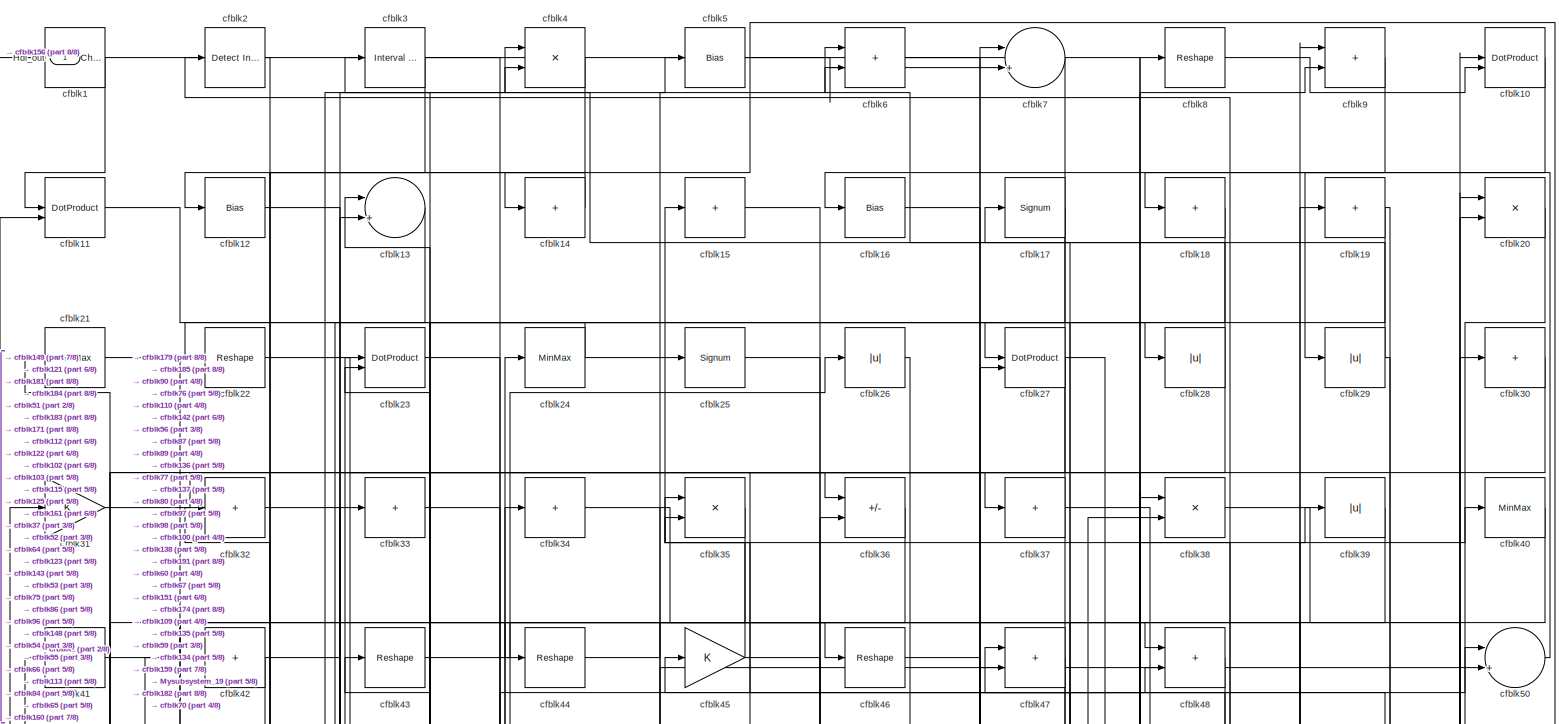
[diagram: root canvas - part 1/8, full width, top band]
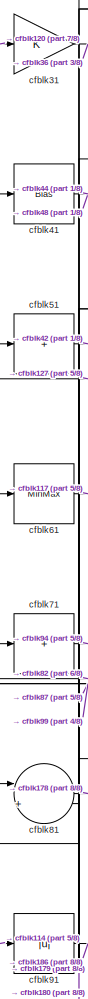
[diagram: root canvas - part 2/8, top left region]
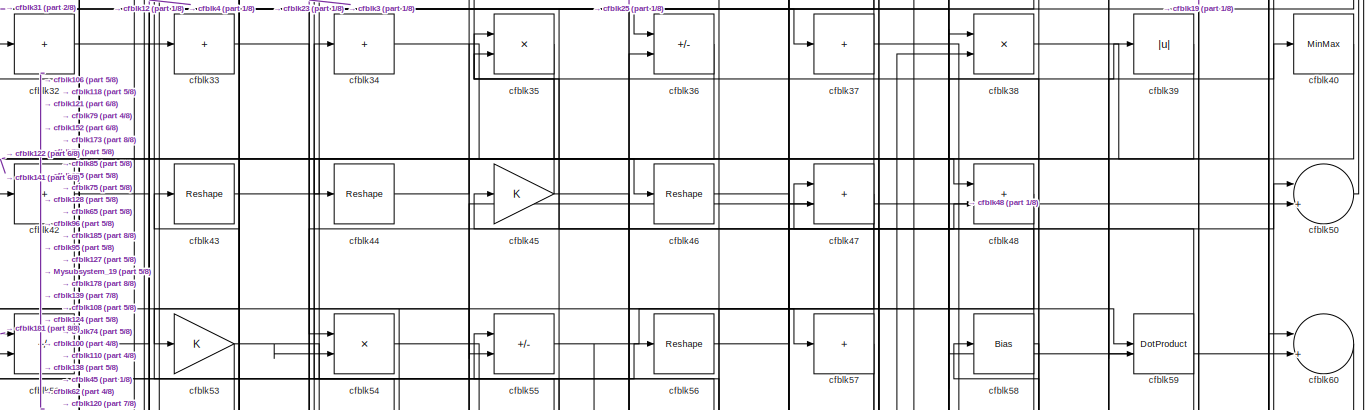
[diagram: root canvas - part 3/8, full width, top band]
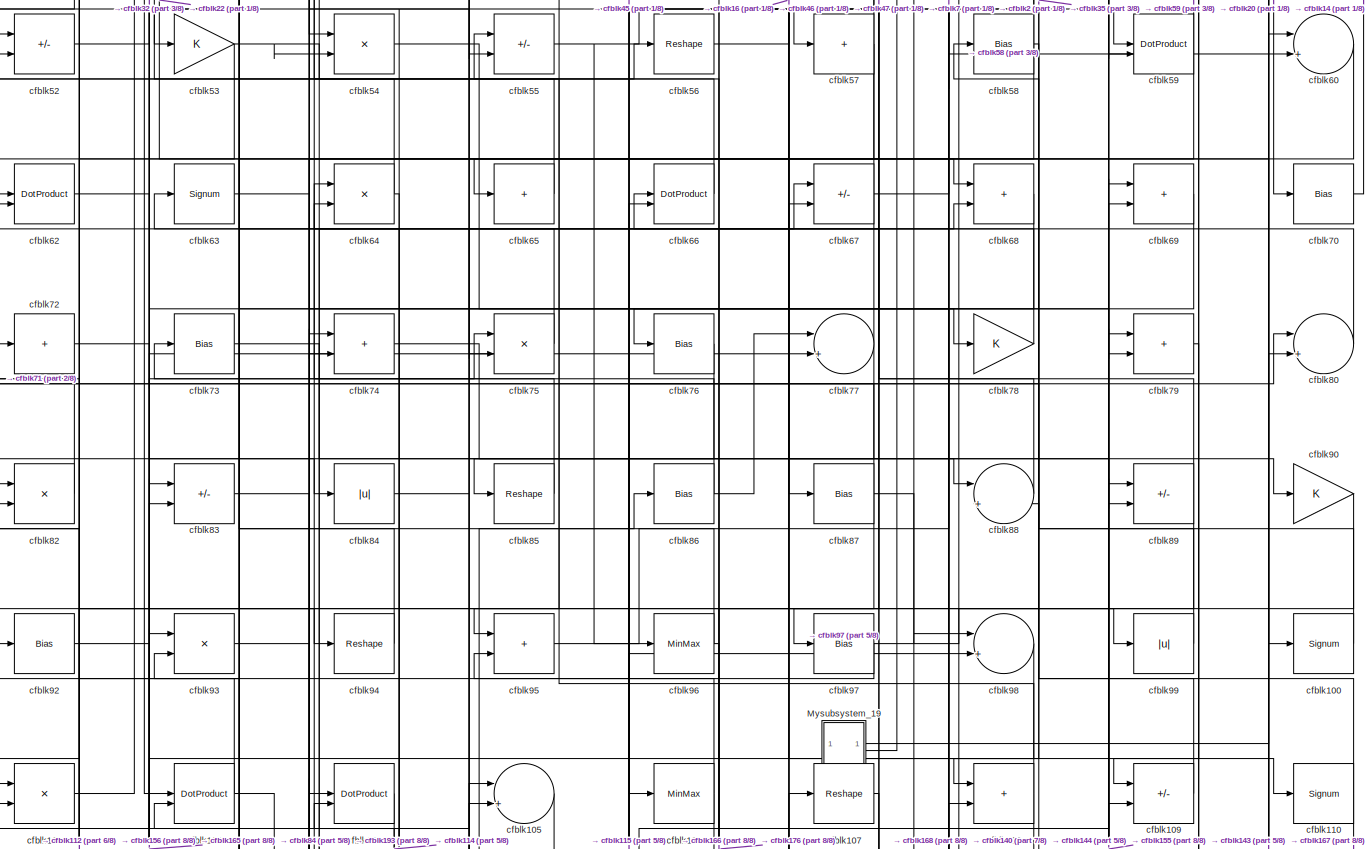
[diagram: root canvas - part 4/8, full width, middle band]
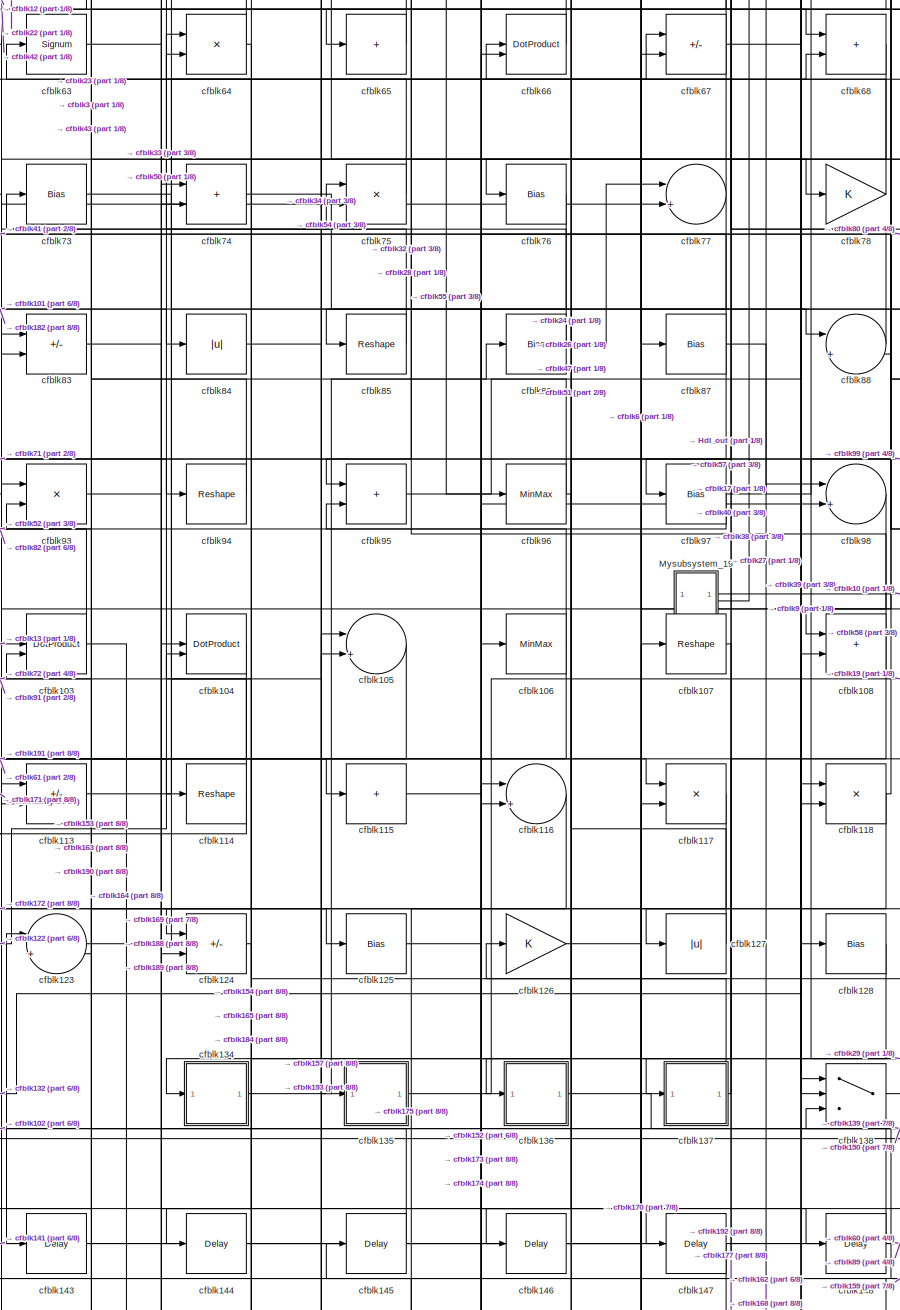
[diagram: root canvas - part 5/8, central region]
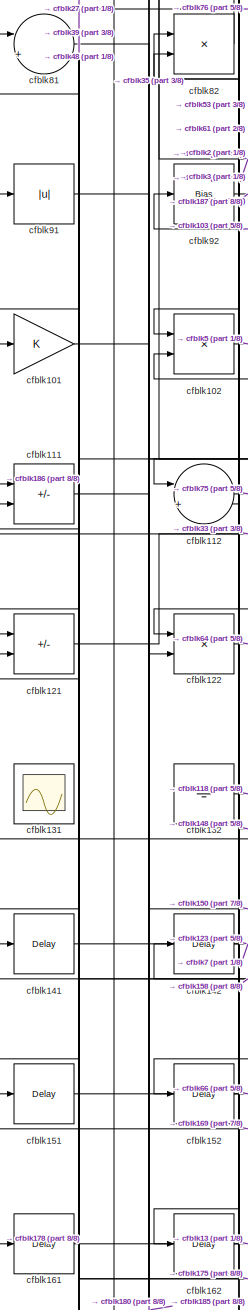
[diagram: root canvas - part 6/8, middle left region]
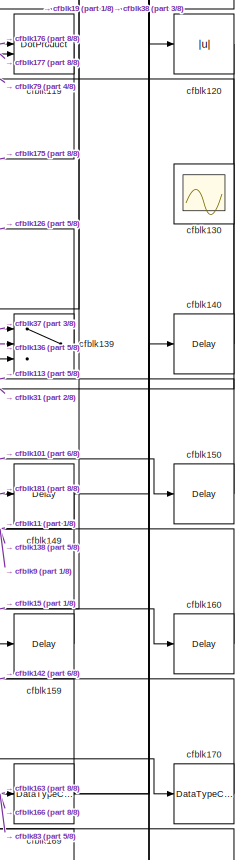
[diagram: root canvas - part 7/8, bottom right region]
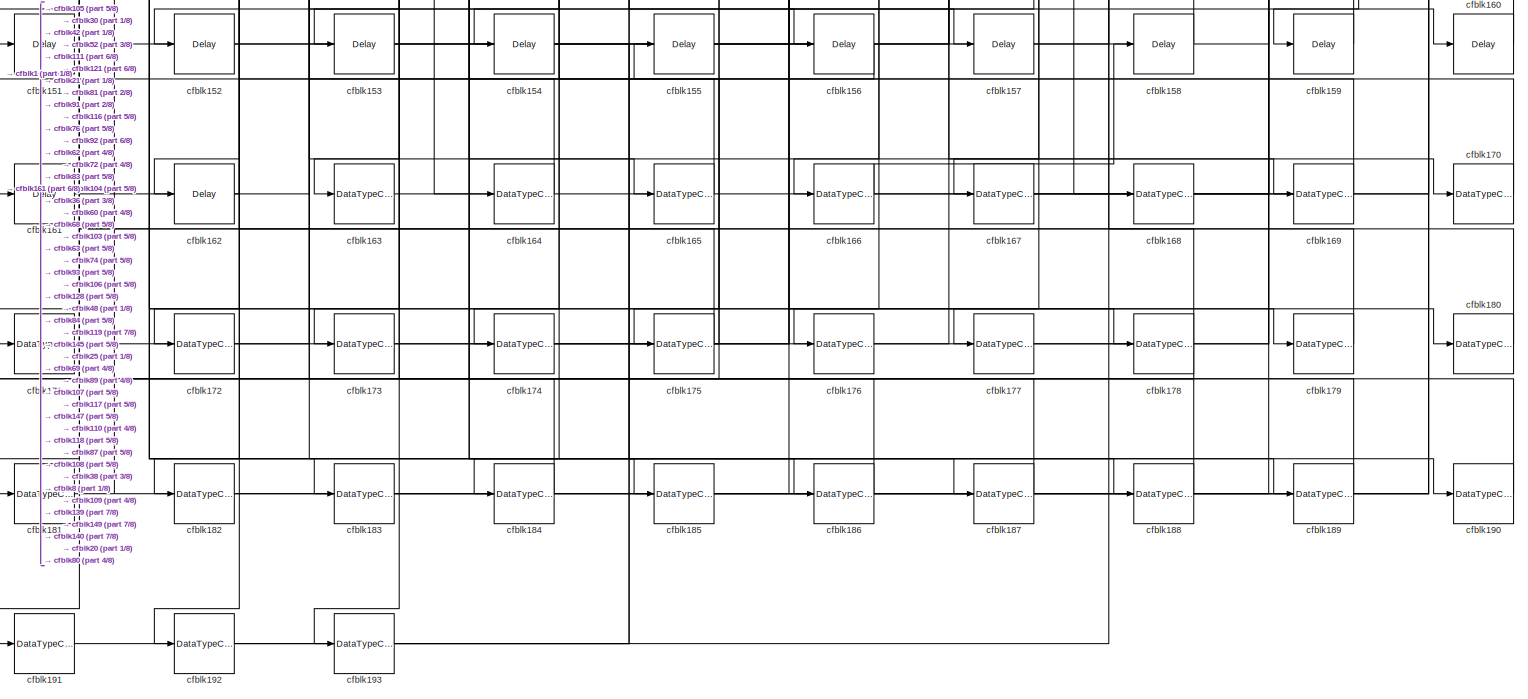
[diagram: root canvas - part 8/8, full width, bottom band]
MODEL slx_78183e9eb3cf
KIND model
CONFIG AbsTol = auto
CONFIG EnableMultiTasking = off
CONFIG FixedStep = auto
CONFIG MaxStep = auto
CONFIG MinStep = auto
CONFIG RelTol = 1e-3
CONFIG SampleTimeConstraint = Unconstrained
CONFIG SolverName = VariableStepAuto
CONFIG StartTime = 0.0
CONFIG StopTime = 10.0
BLOCK [Outport] Hdl_out
  OutDataTypeStr = uint8
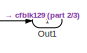
[diagram: Mysubsystem_19 - part 1/3, top right region]
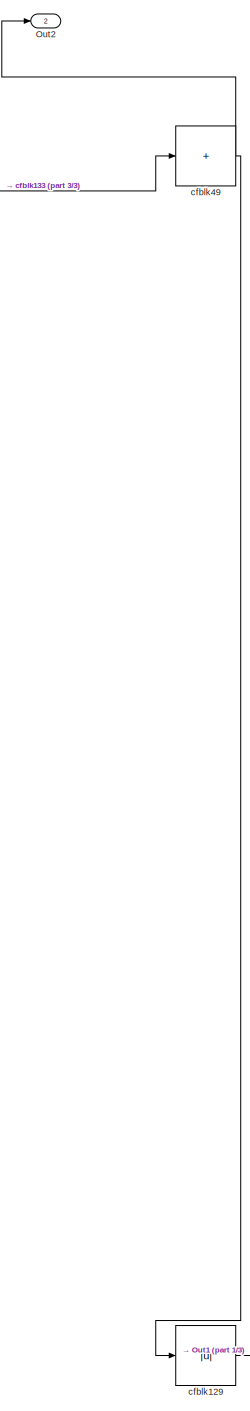
[diagram: Mysubsystem_19 - part 2/3, middle right region]
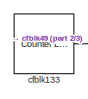
[diagram: Mysubsystem_19 - part 3/3, bottom left region]
BLOCK [SubSystem] Mysubsystem_19
  RTWFcnName = Mysubsystem_19
  RTWFcnNameOpts = User specified
  RTWFileNameOpts = Use function name
  RTWSystemCode = Reusable function
  TreatAsAtomicUnit = on
BLOCK [Outport] Mysubsystem_19/Out1
BLOCK [Outport] Mysubsystem_19/Out2
  Port = 2
BLOCK [Abs] Mysubsystem_19/cfblk129
  SaturateOnIntegerOverflow = off
BLOCK [Reference] Mysubsystem_19/cfblk133  REF=hdlsllib/Sources/Counter
Limited
  SourceBlock = hdlsllib/Sources/Counter\nLimited
  SourceType = Counter Limited
BLOCK [Sum] Mysubsystem_19/cfblk49
  IconShape = rectangular
  Inputs = +
BLOCK [Reference] cfblk1  REF=simulink/Logic and Bit
Operations/Detect
Change
  LibrarySourceBlock = hdlsllib/Logic and Bit\nOperations/Detect\nChange
  SourceBlock = simulink/Logic and Bit\nOperations/Detect\nChange
  SourceType = Detect Change
BLOCK [DotProduct] cfblk10
  OutDataTypeStr = uint8
BLOCK [Signum] cfblk100
BLOCK [Gain] cfblk101
  OutDataTypeStr = uint8
BLOCK [Product] cfblk102
  Inputs = */
  OutDataTypeStr = uint8
  RndMeth = Zero
  SaturateOnIntegerOverflow = on
BLOCK [DotProduct] cfblk103
  OutDataTypeStr = uint8
BLOCK [DotProduct] cfblk104
  OutDataTypeStr = uint8
BLOCK [Sum] cfblk105
  Inputs = |++
  OutDataTypeStr = uint8
BLOCK [MinMax] cfblk106
  OutDataTypeStr = uint8
BLOCK [Reshape] cfblk107
BLOCK [Sum] cfblk108
  IconShape = rectangular
  OutDataTypeStr = uint8
BLOCK [Sum] cfblk109
  IconShape = rectangular
  Inputs = +-
  OutDataTypeStr = uint8
BLOCK [DotProduct] cfblk11
  OutDataTypeStr = uint8
BLOCK [Signum] cfblk110
BLOCK [Sum] cfblk111
  IconShape = rectangular
  Inputs = +-
  OutDataTypeStr = uint8
BLOCK [Sum] cfblk112
  Inputs = |++
  OutDataTypeStr = uint8
BLOCK [Sum] cfblk113
  IconShape = rectangular
  Inputs = +-
  OutDataTypeStr = uint8
BLOCK [Reshape] cfblk114
BLOCK [Sum] cfblk115
  IconShape = rectangular
  Inputs = +
  OutDataTypeStr = uint8
BLOCK [Sum] cfblk116
  Inputs = |++
  OutDataTypeStr = uint8
BLOCK [Product] cfblk117
  Inputs = */
  OutDataTypeStr = uint8
  RndMeth = Zero
  SaturateOnIntegerOverflow = on
BLOCK [Product] cfblk118
  Inputs = */
  OutDataTypeStr = uint8
  RndMeth = Zero
  SaturateOnIntegerOverflow = on
BLOCK [DotProduct] cfblk119
  OutDataTypeStr = uint8
BLOCK [Bias] cfblk12
  Bias = 0.0
  SaturateOnIntegerOverflow = off
BLOCK [Abs] cfblk120
  OutDataTypeStr = uint8
  SaturateOnIntegerOverflow = off
BLOCK [Sum] cfblk121
  IconShape = rectangular
  Inputs = +-
  OutDataTypeStr = uint8
BLOCK [Product] cfblk122
  Inputs = */
  OutDataTypeStr = uint8
  RndMeth = Zero
  SaturateOnIntegerOverflow = on
BLOCK [Sum] cfblk123
  Inputs = |++
  OutDataTypeStr = uint8
BLOCK [Sum] cfblk124
  IconShape = rectangular
  Inputs = +-
  OutDataTypeStr = uint8
BLOCK [Bias] cfblk125
  Bias = 0.0
  SaturateOnIntegerOverflow = off
BLOCK [Gain] cfblk126
  OutDataTypeStr = uint8
BLOCK [Abs] cfblk127
  OutDataTypeStr = uint8
  SaturateOnIntegerOverflow = off
BLOCK [Bias] cfblk128
  Bias = 0.0
  SaturateOnIntegerOverflow = off
BLOCK [Sum] cfblk13
  Inputs = |++
  OutDataTypeStr = uint8
BLOCK [Scope] cfblk130
  Floating = on
  NumInputPorts = 1
  ScopeSpecificationString = Simulink.scopes.TimeScopeBlockCfg('CurrentConfiguration', extmgr.ConfigurationSet(extmgr.Configuration('Core','General UI',true,'FigureColor',[0.156862745098039 0.156862745098039 0.156862745098039]),extmgr.Configuration('Core','Source UI',true),extmgr.Configuration('Sources','WiredSimulink',true,'DataLoggingVariableName','ScopeData1','DataLoggingSaveFormat','StructureWithTime','DataLoggingLimitDat...<+2713ch>
BLOCK [Scope] cfblk131
  Floating = on
  NumInputPorts = 1
  ScopeSpecificationString = Simulink.scopes.TimeScopeBlockCfg('CurrentConfiguration', extmgr.ConfigurationSet(extmgr.Configuration('Core','General UI',true,'FigureColor',[0.156862745098039 0.156862745098039 0.156862745098039]),extmgr.Configuration('Core','Source UI',true),extmgr.Configuration('Sources','WiredSimulink',true,'DataLoggingVariableName','ScopeData1','DataLoggingSaveFormat','StructureWithTime','DataLoggingLimitDat...<+2713ch>
BLOCK [Ground] cfblk132
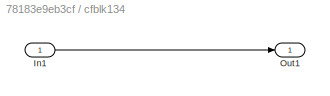
BLOCK [SubSystem] cfblk134
  LibrarySourceBlock = hdlsllib/Ports &\nSubsystems/Subsystem
BLOCK [Inport] cfblk134/In1
BLOCK [Outport] cfblk134/Out1
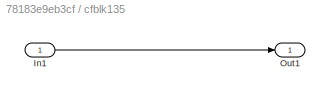
BLOCK [SubSystem] cfblk135
  LibrarySourceBlock = hdlsllib/Ports &\nSubsystems/Subsystem
BLOCK [Inport] cfblk135/In1
BLOCK [Outport] cfblk135/Out1
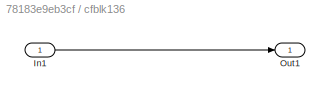
BLOCK [SubSystem] cfblk136
  LibrarySourceBlock = hdlsllib/Ports &\nSubsystems/Subsystem
BLOCK [Inport] cfblk136/In1
BLOCK [Outport] cfblk136/Out1
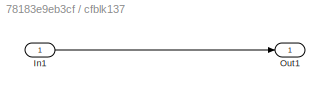
BLOCK [SubSystem] cfblk137
  LibrarySourceBlock = hdlsllib/Ports &\nSubsystems/Subsystem
BLOCK [Inport] cfblk137/In1
BLOCK [Outport] cfblk137/Out1
BLOCK [Switch] cfblk138
  InputSameDT = off
  OutDataTypeStr = uint8
  SaturateOnIntegerOverflow = off
BLOCK [Switch] cfblk139
  InputSameDT = off
  OutDataTypeStr = uint8
  SaturateOnIntegerOverflow = off
BLOCK [Sum] cfblk14
  IconShape = rectangular
  Inputs = +
  OutDataTypeStr = uint8
BLOCK [Delay] cfblk140
  InputPortMap = u0
  SampleTime = 1
BLOCK [Delay] cfblk141
  InputPortMap = u0
  SampleTime = 1
BLOCK [Delay] cfblk142
  InputPortMap = u0
  SampleTime = 1
BLOCK [Delay] cfblk143
  InputPortMap = u0
  SampleTime = 1
BLOCK [Delay] cfblk144
  InputPortMap = u0
  SampleTime = 1
BLOCK [Delay] cfblk145
  InputPortMap = u0
  SampleTime = 1
BLOCK [Delay] cfblk146
  InputPortMap = u0
  SampleTime = 1
BLOCK [Delay] cfblk147
  InputPortMap = u0
  SampleTime = 1
BLOCK [Delay] cfblk148
  InputPortMap = u0
  SampleTime = 1
BLOCK [Delay] cfblk149
  InputPortMap = u0
  SampleTime = 1
BLOCK [Sum] cfblk15
  IconShape = rectangular
  Inputs = +
  OutDataTypeStr = uint8
BLOCK [Delay] cfblk150
  InputPortMap = u0
  SampleTime = 1
BLOCK [Delay] cfblk151
  InputPortMap = u0
  SampleTime = 1
BLOCK [Delay] cfblk152
  InputPortMap = u0
  SampleTime = 1
BLOCK [Delay] cfblk153
  InputPortMap = u0
  SampleTime = 1
BLOCK [Delay] cfblk154
  InputPortMap = u0
  SampleTime = 1
BLOCK [Delay] cfblk155
  InputPortMap = u0
  SampleTime = 1
BLOCK [Delay] cfblk156
  InputPortMap = u0
  SampleTime = 1
BLOCK [Delay] cfblk157
  InputPortMap = u0
  SampleTime = 1
BLOCK [Delay] cfblk158
  InputPortMap = u0
  SampleTime = 1
BLOCK [Delay] cfblk159
  InputPortMap = u0
  SampleTime = 1
BLOCK [Bias] cfblk16
  Bias = 0.0
  SaturateOnIntegerOverflow = off
BLOCK [Delay] cfblk160
  InputPortMap = u0
  SampleTime = 1
BLOCK [Delay] cfblk161
  InputPortMap = u0
  SampleTime = 1
BLOCK [Delay] cfblk162
  InputPortMap = u0
  SampleTime = 1
BLOCK [DataTypeConversion] cfblk163
  OutDataTypeStr = uint8
  RndMeth = Floor
  SaturateOnIntegerOverflow = off
BLOCK [DataTypeConversion] cfblk164
  OutDataTypeStr = uint8
  RndMeth = Floor
  SaturateOnIntegerOverflow = off
BLOCK [DataTypeConversion] cfblk165
  OutDataTypeStr = uint8
  RndMeth = Floor
  SaturateOnIntegerOverflow = off
BLOCK [DataTypeConversion] cfblk166
  OutDataTypeStr = uint8
  RndMeth = Floor
  SaturateOnIntegerOverflow = off
BLOCK [DataTypeConversion] cfblk167
  OutDataTypeStr = uint8
  RndMeth = Floor
  SaturateOnIntegerOverflow = off
BLOCK [DataTypeConversion] cfblk168
  OutDataTypeStr = uint8
  RndMeth = Floor
  SaturateOnIntegerOverflow = off
BLOCK [DataTypeConversion] cfblk169
  OutDataTypeStr = uint8
  RndMeth = Floor
  SaturateOnIntegerOverflow = off
BLOCK [Signum] cfblk17
BLOCK [DataTypeConversion] cfblk170
  OutDataTypeStr = uint8
  RndMeth = Floor
  SaturateOnIntegerOverflow = off
BLOCK [DataTypeConversion] cfblk171
  OutDataTypeStr = uint8
  RndMeth = Floor
  SaturateOnIntegerOverflow = off
BLOCK [DataTypeConversion] cfblk172
  OutDataTypeStr = uint8
  RndMeth = Floor
  SaturateOnIntegerOverflow = off
BLOCK [DataTypeConversion] cfblk173
  OutDataTypeStr = uint8
  RndMeth = Floor
  SaturateOnIntegerOverflow = off
BLOCK [DataTypeConversion] cfblk174
  OutDataTypeStr = uint8
  RndMeth = Floor
  SaturateOnIntegerOverflow = off
BLOCK [DataTypeConversion] cfblk175
  OutDataTypeStr = uint8
  RndMeth = Floor
  SaturateOnIntegerOverflow = off
BLOCK [DataTypeConversion] cfblk176
  OutDataTypeStr = uint8
  RndMeth = Floor
  SaturateOnIntegerOverflow = off
BLOCK [DataTypeConversion] cfblk177
  OutDataTypeStr = uint8
  RndMeth = Floor
  SaturateOnIntegerOverflow = off
BLOCK [DataTypeConversion] cfblk178
  OutDataTypeStr = uint8
  RndMeth = Floor
  SaturateOnIntegerOverflow = off
BLOCK [DataTypeConversion] cfblk179
  OutDataTypeStr = uint8
  RndMeth = Floor
  SaturateOnIntegerOverflow = off
BLOCK [Sum] cfblk18
  IconShape = rectangular
  Inputs = +
  OutDataTypeStr = uint8
BLOCK [DataTypeConversion] cfblk180
  OutDataTypeStr = uint8
  RndMeth = Floor
  SaturateOnIntegerOverflow = off
BLOCK [DataTypeConversion] cfblk181
  OutDataTypeStr = uint8
  RndMeth = Floor
  SaturateOnIntegerOverflow = off
BLOCK [DataTypeConversion] cfblk182
  OutDataTypeStr = uint8
  RndMeth = Floor
  SaturateOnIntegerOverflow = off
BLOCK [DataTypeConversion] cfblk183
  OutDataTypeStr = uint8
  RndMeth = Floor
  SaturateOnIntegerOverflow = off
BLOCK [DataTypeConversion] cfblk184
  OutDataTypeStr = uint8
  RndMeth = Floor
  SaturateOnIntegerOverflow = off
BLOCK [DataTypeConversion] cfblk185
  OutDataTypeStr = uint8
  RndMeth = Floor
  SaturateOnIntegerOverflow = off
BLOCK [DataTypeConversion] cfblk186
  OutDataTypeStr = uint8
  RndMeth = Floor
  SaturateOnIntegerOverflow = off
BLOCK [DataTypeConversion] cfblk187
  OutDataTypeStr = uint8
  RndMeth = Floor
  SaturateOnIntegerOverflow = off
BLOCK [DataTypeConversion] cfblk188
  OutDataTypeStr = uint8
  RndMeth = Floor
  SaturateOnIntegerOverflow = off
BLOCK [DataTypeConversion] cfblk189
  OutDataTypeStr = uint8
  RndMeth = Floor
  SaturateOnIntegerOverflow = off
BLOCK [Sum] cfblk19
  IconShape = rectangular
  Inputs = +
  OutDataTypeStr = uint8
BLOCK [DataTypeConversion] cfblk190
  OutDataTypeStr = uint8
  RndMeth = Floor
  SaturateOnIntegerOverflow = off
BLOCK [DataTypeConversion] cfblk191
  OutDataTypeStr = uint8
  RndMeth = Floor
  SaturateOnIntegerOverflow = off
BLOCK [DataTypeConversion] cfblk192
  OutDataTypeStr = uint8
  RndMeth = Floor
  SaturateOnIntegerOverflow = off
BLOCK [DataTypeConversion] cfblk193
  OutDataTypeStr = uint8
  RndMeth = Floor
  SaturateOnIntegerOverflow = off
BLOCK [Reference] cfblk2  REF=simulink/Logic and Bit
Operations/Detect
Increase
  LibrarySourceBlock = hdlsllib/Logic and Bit\nOperations/Detect\nIncrease
  SourceBlock = simulink/Logic and Bit\nOperations/Detect\nIncrease
  SourceType = Detect Increase
BLOCK [Product] cfblk20
  Inputs = */
  OutDataTypeStr = uint8
  RndMeth = Zero
  SaturateOnIntegerOverflow = on
BLOCK [MinMax] cfblk21
  OutDataTypeStr = uint8
BLOCK [Reshape] cfblk22
BLOCK [DotProduct] cfblk23
  OutDataTypeStr = uint8
BLOCK [MinMax] cfblk24
  OutDataTypeStr = uint8
BLOCK [Signum] cfblk25
BLOCK [Abs] cfblk26
  OutDataTypeStr = uint8
  SaturateOnIntegerOverflow = off
BLOCK [DotProduct] cfblk27
  OutDataTypeStr = uint8
BLOCK [Abs] cfblk28
  OutDataTypeStr = uint8
  SaturateOnIntegerOverflow = off
BLOCK [Abs] cfblk29
  OutDataTypeStr = uint8
  SaturateOnIntegerOverflow = off
BLOCK [Reference] cfblk3  REF=hdlsllib/Logic and Bit
Operations/Interval Test
  SourceBlock = hdlsllib/Logic and Bit\nOperations/Interval Test
  SourceType = Interval Test
BLOCK [Sum] cfblk30
  IconShape = rectangular
  Inputs = +
  OutDataTypeStr = uint8
BLOCK [Gain] cfblk31
  OutDataTypeStr = uint8
BLOCK [Sum] cfblk32
  IconShape = rectangular
  Inputs = +
  OutDataTypeStr = uint8
BLOCK [Sum] cfblk33
  IconShape = rectangular
  Inputs = +
  OutDataTypeStr = uint8
BLOCK [Sum] cfblk34
  IconShape = rectangular
  Inputs = +
  OutDataTypeStr = uint8
BLOCK [Product] cfblk35
  Inputs = */
  OutDataTypeStr = uint8
  RndMeth = Zero
  SaturateOnIntegerOverflow = on
BLOCK [Sum] cfblk36
  IconShape = rectangular
  Inputs = +-
  OutDataTypeStr = uint8
BLOCK [Sum] cfblk37
  IconShape = rectangular
  Inputs = +
  OutDataTypeStr = uint8
BLOCK [Product] cfblk38
  Inputs = */
  OutDataTypeStr = uint8
  RndMeth = Zero
  SaturateOnIntegerOverflow = on
BLOCK [Abs] cfblk39
  OutDataTypeStr = uint8
  SaturateOnIntegerOverflow = off
BLOCK [Product] cfblk4
  Inputs = */
  OutDataTypeStr = uint8
  RndMeth = Zero
  SaturateOnIntegerOverflow = on
BLOCK [MinMax] cfblk40
  OutDataTypeStr = uint8
BLOCK [Bias] cfblk41
  Bias = 0.0
  SaturateOnIntegerOverflow = off
BLOCK [Sum] cfblk42
  IconShape = rectangular
  Inputs = +
  OutDataTypeStr = uint8
BLOCK [Reshape] cfblk43
BLOCK [Reshape] cfblk44
BLOCK [Gain] cfblk45
  OutDataTypeStr = uint8
BLOCK [Reshape] cfblk46
BLOCK [Sum] cfblk47
  IconShape = rectangular
  OutDataTypeStr = uint8
BLOCK [Sum] cfblk48
  IconShape = rectangular
  OutDataTypeStr = uint8
BLOCK [Bias] cfblk5
  Bias = 0.0
  SaturateOnIntegerOverflow = off
BLOCK [Sum] cfblk50
  Inputs = |++
  OutDataTypeStr = uint8
BLOCK [Sum] cfblk51
  IconShape = rectangular
  Inputs = +
  OutDataTypeStr = uint8
BLOCK [Sum] cfblk52
  IconShape = rectangular
  Inputs = +-
  OutDataTypeStr = uint8
BLOCK [Gain] cfblk53
  OutDataTypeStr = uint8
BLOCK [Product] cfblk54
  Inputs = */
  OutDataTypeStr = uint8
  RndMeth = Zero
  SaturateOnIntegerOverflow = on
BLOCK [Sum] cfblk55
  IconShape = rectangular
  Inputs = +-
  OutDataTypeStr = uint8
BLOCK [Reshape] cfblk56
BLOCK [Sum] cfblk57
  IconShape = rectangular
  Inputs = +
  OutDataTypeStr = uint8
BLOCK [Bias] cfblk58
  Bias = 0.0
  SaturateOnIntegerOverflow = off
BLOCK [DotProduct] cfblk59
  OutDataTypeStr = uint8
BLOCK [Sum] cfblk6
  IconShape = rectangular
  OutDataTypeStr = uint8
BLOCK [Sum] cfblk60
  Inputs = |++
  OutDataTypeStr = uint8
BLOCK [MinMax] cfblk61
  OutDataTypeStr = uint8
BLOCK [DotProduct] cfblk62
  OutDataTypeStr = uint8
BLOCK [Signum] cfblk63
BLOCK [Product] cfblk64
  Inputs = */
  OutDataTypeStr = uint8
  RndMeth = Zero
  SaturateOnIntegerOverflow = on
BLOCK [Sum] cfblk65
  IconShape = rectangular
  Inputs = +
  OutDataTypeStr = uint8
BLOCK [DotProduct] cfblk66
  OutDataTypeStr = uint8
BLOCK [Sum] cfblk67
  IconShape = rectangular
  Inputs = +-
  OutDataTypeStr = uint8
BLOCK [Sum] cfblk68
  IconShape = rectangular
  OutDataTypeStr = uint8
BLOCK [Sum] cfblk69
  IconShape = rectangular
  OutDataTypeStr = uint8
BLOCK [Sum] cfblk7
  Inputs = |++
  OutDataTypeStr = uint8
BLOCK [Bias] cfblk70
  Bias = 0.0
  SaturateOnIntegerOverflow = off
BLOCK [Sum] cfblk71
  IconShape = rectangular
  Inputs = +
  OutDataTypeStr = uint8
BLOCK [Sum] cfblk72
  IconShape = rectangular
  Inputs = +
  OutDataTypeStr = uint8
BLOCK [Bias] cfblk73
  Bias = 0.0
  SaturateOnIntegerOverflow = off
BLOCK [Sum] cfblk74
  IconShape = rectangular
  OutDataTypeStr = uint8
BLOCK [Product] cfblk75
  Inputs = */
  OutDataTypeStr = uint8
  RndMeth = Zero
  SaturateOnIntegerOverflow = on
BLOCK [Bias] cfblk76
  Bias = 0.0
  SaturateOnIntegerOverflow = off
BLOCK [Sum] cfblk77
  Inputs = |++
  OutDataTypeStr = uint8
BLOCK [Gain] cfblk78
  OutDataTypeStr = uint8
BLOCK [Sum] cfblk79
  IconShape = rectangular
  OutDataTypeStr = uint8
BLOCK [Reshape] cfblk8
BLOCK [Sum] cfblk80
  Inputs = |++
  OutDataTypeStr = uint8
BLOCK [Sum] cfblk81
  Inputs = |++
  OutDataTypeStr = uint8
BLOCK [Product] cfblk82
  Inputs = */
  OutDataTypeStr = uint8
  RndMeth = Zero
  SaturateOnIntegerOverflow = on
BLOCK [Sum] cfblk83
  IconShape = rectangular
  Inputs = +-
  OutDataTypeStr = uint8
BLOCK [Abs] cfblk84
  OutDataTypeStr = uint8
  SaturateOnIntegerOverflow = off
BLOCK [Reshape] cfblk85
BLOCK [Bias] cfblk86
  Bias = 0.0
  SaturateOnIntegerOverflow = off
BLOCK [Bias] cfblk87
  Bias = 0.0
  SaturateOnIntegerOverflow = off
BLOCK [Sum] cfblk88
  Inputs = |++
  OutDataTypeStr = uint8
BLOCK [Sum] cfblk89
  IconShape = rectangular
  Inputs = +-
  OutDataTypeStr = uint8
BLOCK [Sum] cfblk9
  IconShape = rectangular
  OutDataTypeStr = uint8
BLOCK [Gain] cfblk90
  OutDataTypeStr = uint8
BLOCK [Abs] cfblk91
  OutDataTypeStr = uint8
  SaturateOnIntegerOverflow = off
BLOCK [Bias] cfblk92
  Bias = 0.0
  SaturateOnIntegerOverflow = off
BLOCK [Product] cfblk93
  Inputs = */
  OutDataTypeStr = uint8
  RndMeth = Zero
  SaturateOnIntegerOverflow = on
BLOCK [Reshape] cfblk94
BLOCK [Sum] cfblk95
  IconShape = rectangular
  OutDataTypeStr = uint8
BLOCK [MinMax] cfblk96
  OutDataTypeStr = uint8
BLOCK [Bias] cfblk97
  Bias = 0.0
  SaturateOnIntegerOverflow = off
BLOCK [Sum] cfblk98
  Inputs = |++
  OutDataTypeStr = uint8
BLOCK [Abs] cfblk99
  OutDataTypeStr = uint8
  SaturateOnIntegerOverflow = off
LINE Mysubsystem_19/cfblk129:1 -> Mysubsystem_19/Out1:1
LINE Mysubsystem_19/cfblk133:1 -> Mysubsystem_19/cfblk49:1
NET Mysubsystem_19/cfblk49:1 -> Mysubsystem_19/Out2:1, Mysubsystem_19/cfblk129:1
LINE Mysubsystem_19:1 -> cfblk10:1
LINE Mysubsystem_19:2 -> cfblk38:2
LINE cfblk100:1 -> cfblk58:1
LINE cfblk101:1 -> cfblk150:1
LINE cfblk102:1 -> cfblk5:1
NET cfblk103:1 -> cfblk164:1, cfblk82:1
LINE cfblk104:1 -> cfblk163:1
LINE cfblk105:1 -> cfblk191:1
NET cfblk106:1 -> cfblk154:1, cfblk52:2
LINE cfblk107:1 -> cfblk137:1
NET cfblk108:1 -> cfblk138:2, cfblk55:1
LINE cfblk109:1 -> cfblk2:1
LINE cfblk10:1 -> cfblk29:1
NET cfblk110:1 -> cfblk167:1, cfblk35:1
LINE cfblk111:1 -> cfblk185:1
LINE cfblk112:1 -> cfblk75:1
LINE cfblk113:1 -> cfblk26:1
NET cfblk114:1 -> cfblk72:1, cfblk91:1
LINE cfblk115:1 -> cfblk80:1
LINE cfblk116:1 -> cfblk172:1
LINE cfblk117:1 -> cfblk123:2
NET cfblk118:1 -> cfblk177:1, cfblk88:2
LINE cfblk119:1 -> cfblk175:1
LINE cfblk11:1 -> cfblk28:1
LINE cfblk120:1 -> cfblk31:1
NET cfblk121:1 -> cfblk180:1, cfblk33:1
LINE cfblk122:1 -> cfblk64:1
NET cfblk123:1 -> cfblk23:2, cfblk50:1, cfblk67:1, cfblk68:2
LINE cfblk124:1 -> cfblk144:1
NET cfblk125:1 -> cfblk147:1, cfblk98:2
LINE cfblk126:1 -> cfblk170:1
LINE cfblk127:1 -> cfblk51:1
LINE cfblk128:1 -> cfblk184:1
NET cfblk12:1 -> cfblk115:1, cfblk37:1
LINE cfblk132:1 -> cfblk118:1
LINE cfblk134/In1:1 -> cfblk134/Out1:1
LINE cfblk134:1 -> cfblk86:1
LINE cfblk135/In1:1 -> cfblk135/Out1:1
LINE cfblk135:1 -> cfblk19:1
LINE cfblk136/In1:1 -> cfblk136/Out1:1
LINE cfblk136:1 -> cfblk139:2
LINE cfblk137/In1:1 -> cfblk137/Out1:1
NET cfblk137:1 -> cfblk17:1, cfblk64:2
LINE cfblk138:1 -> cfblk40:1
LINE cfblk139:1 -> cfblk126:1
LINE cfblk13:1 -> cfblk103:1
LINE cfblk140:1 -> cfblk79:1
LINE cfblk141:1 -> cfblk123:1
LINE cfblk142:1 -> cfblk7:1
LINE cfblk143:1 -> cfblk60:1
LINE cfblk144:1 -> cfblk89:1
LINE cfblk145:1 -> cfblk103:2
LINE cfblk146:1 -> cfblk67:2
LINE cfblk147:1 -> cfblk192:1
LINE cfblk148:1 -> cfblk102:2
LINE cfblk149:1 -> cfblk11:2
LINE cfblk14:1 -> cfblk12:1
LINE cfblk150:1 -> cfblk113:1
LINE cfblk151:1 -> cfblk27:2
LINE cfblk152:1 -> cfblk66:2
LINE cfblk153:1 -> cfblk117:2
LINE cfblk154:1 -> cfblk190:1
LINE cfblk155:1 -> cfblk109:2
LINE cfblk156:1 -> cfblk1:1
LINE cfblk157:1 -> cfblk108:2
LINE cfblk158:1 -> cfblk121:2
LINE cfblk159:1 -> cfblk138:3
LINE cfblk15:1 -> cfblk160:1
LINE cfblk160:1 -> cfblk9:1
LINE cfblk161:1 -> cfblk13:2
LINE cfblk162:1 -> cfblk82:2
LINE cfblk163:1 -> cfblk140:1
LINE cfblk164:1 -> cfblk104:1
LINE cfblk165:1 -> cfblk104:2
NET cfblk166:1 -> cfblk139:3, cfblk158:1, cfblk80:2
LINE cfblk167:1 -> cfblk69:1
LINE cfblk168:1 -> cfblk69:2
LINE cfblk169:1 -> cfblk142:1
NET cfblk16:1 -> cfblk110:1, cfblk47:2
LINE cfblk170:1 -> cfblk83:1
LINE cfblk171:1 -> cfblk83:2
LINE cfblk172:1 -> cfblk107:1
LINE cfblk173:1 -> cfblk116:1
LINE cfblk174:1 -> cfblk116:2
NET cfblk175:1 -> cfblk145:1, cfblk92:1
LINE cfblk176:1 -> cfblk119:1
LINE cfblk177:1 -> cfblk119:2
NET cfblk178:1 -> cfblk161:1, cfblk38:1
LINE cfblk179:1 -> cfblk81:1
LINE cfblk17:1 -> cfblk143:1
LINE cfblk180:1 -> cfblk81:2
NET cfblk181:1 -> cfblk149:1, cfblk52:1
LINE cfblk182:1 -> cfblk30:1
LINE cfblk183:1 -> cfblk20:2
LINE cfblk184:1 -> cfblk21:1
NET cfblk185:1 -> cfblk20:1, cfblk36:2
LINE cfblk186:1 -> cfblk111:1
LINE cfblk187:1 -> cfblk111:2
NET cfblk188:1 -> cfblk155:1, cfblk74:1
LINE cfblk189:1 -> cfblk93:1
LINE cfblk18:1 -> cfblk27:1
LINE cfblk190:1 -> cfblk93:2
LINE cfblk191:1 -> cfblk8:1
LINE cfblk192:1 -> cfblk105:1
LINE cfblk193:1 -> cfblk105:2
NET cfblk19:1 -> cfblk159:1, cfblk53:1, cfblk97:1
LINE cfblk1:1 -> cfblk11:1
LINE cfblk20:1 -> cfblk70:1
LINE cfblk21:1 -> cfblk183:1
NET cfblk22:1 -> cfblk100:1, cfblk138:1
LINE cfblk23:1 -> cfblk54:1
NET cfblk24:1 -> cfblk22:1, cfblk6:1
NET cfblk25:1 -> cfblk179:1, cfblk59:1
LINE cfblk26:1 -> cfblk76:1
NET cfblk27:1 -> cfblk121:1, cfblk98:1
NET cfblk28:1 -> cfblk65:1, cfblk6:2
NET cfblk29:1 -> cfblk134:1, cfblk4:2
LINE cfblk2:1 -> cfblk102:1
LINE cfblk30:1 -> cfblk181:1
LINE cfblk31:1 -> cfblk36:1
NET cfblk32:1 -> cfblk118:2, cfblk79:2
LINE cfblk33:1 -> cfblk78:1
NET cfblk34:1 -> cfblk135:1, cfblk59:2
LINE cfblk35:1 -> cfblk122:2
LINE cfblk36:1 -> cfblk173:1
LINE cfblk37:1 -> cfblk139:1
LINE cfblk38:1 -> cfblk120:1
LINE cfblk39:1 -> cfblk141:1
NET cfblk3:1 -> cfblk122:1, cfblk148:1, cfblk55:2
NET cfblk40:1 -> cfblk127:1, cfblk75:2
NET cfblk41:1 -> cfblk44:1, cfblk48:1
NET cfblk42:1 -> cfblk125:1, cfblk171:1, cfblk77:2
LINE cfblk43:1 -> cfblk46:1
LINE cfblk44:1 -> cfblk25:1
NET cfblk45:1 -> cfblk15:1, cfblk90:1
LINE cfblk46:1 -> cfblk89:2
LINE cfblk47:1 -> cfblk136:1
NET cfblk48:1 -> cfblk151:1, cfblk174:1
LINE cfblk4:1 -> cfblk112:2
LINE cfblk50:1 -> cfblk16:1
LINE cfblk51:1 -> cfblk42:1
LINE cfblk52:1 -> cfblk4:1
NET cfblk53:1 -> cfblk152:1, cfblk54:2, cfblk56:1
LINE cfblk54:1 -> cfblk128:1
NET cfblk55:1 -> cfblk57:1, cfblk96:1
LINE cfblk56:1 -> cfblk48:2
LINE cfblk57:1 -> cfblk95:1
NET cfblk58:1 -> cfblk108:1, cfblk124:2, cfblk35:2, cfblk74:2
NET cfblk59:1 -> cfblk45:1, cfblk62:1
LINE cfblk5:1 -> cfblk7:2
LINE cfblk60:1 -> cfblk193:1
LINE cfblk61:1 -> cfblk117:1
LINE cfblk62:1 -> cfblk165:1
NET cfblk63:1 -> cfblk189:1, cfblk68:1
NET cfblk64:1 -> cfblk124:1, cfblk23:1
LINE cfblk65:1 -> cfblk32:1
LINE cfblk66:1 -> cfblk24:1
LINE cfblk67:1 -> cfblk9:2
LINE cfblk68:1 -> cfblk153:1
LINE cfblk69:1 -> cfblk166:1
LINE cfblk6:1 -> cfblk87:1
LINE cfblk70:1 -> cfblk14:1
NET cfblk71:1 -> cfblk114:1, cfblk94:1
NET cfblk72:1 -> cfblk156:1, cfblk84:1
LINE cfblk73:1 -> cfblk88:1
LINE cfblk74:1 -> cfblk106:1
LINE cfblk75:1 -> cfblk3:1
NET cfblk76:1 -> cfblk101:1, cfblk182:1
NET cfblk77:1 -> Hdl_out:1, cfblk85:1
LINE cfblk78:1 -> cfblk66:1
LINE cfblk79:1 -> cfblk109:1
LINE cfblk7:1 -> cfblk60:2
LINE cfblk80:1 -> cfblk47:1
LINE cfblk81:1 -> cfblk178:1
LINE cfblk82:1 -> cfblk61:1
LINE cfblk83:1 -> cfblk169:1
NET cfblk84:1 -> cfblk157:1, cfblk50:2
LINE cfblk85:1 -> cfblk34:1
NET cfblk86:1 -> cfblk13:1, cfblk77:1
NET cfblk87:1 -> cfblk162:1, cfblk168:1, cfblk41:1
LINE cfblk88:1 -> cfblk63:1
NET cfblk89:1 -> cfblk176:1, cfblk62:2
LINE cfblk8:1 -> cfblk10:2
LINE cfblk90:1 -> cfblk112:1
LINE cfblk91:1 -> cfblk186:1
LINE cfblk92:1 -> cfblk187:1
LINE cfblk93:1 -> cfblk188:1
LINE cfblk94:1 -> cfblk73:1
LINE cfblk95:1 -> cfblk39:1
NET cfblk96:1 -> cfblk146:1, cfblk43:1
NET cfblk97:1 -> cfblk95:2, cfblk99:1
LINE cfblk98:1 -> cfblk113:2
LINE cfblk99:1 -> cfblk71:1
LINE cfblk9:1 -> cfblk18:1
note: NET lines group one-source signal fan-out (src -> all destinations, sorted); 1:1 wires keep LINE
